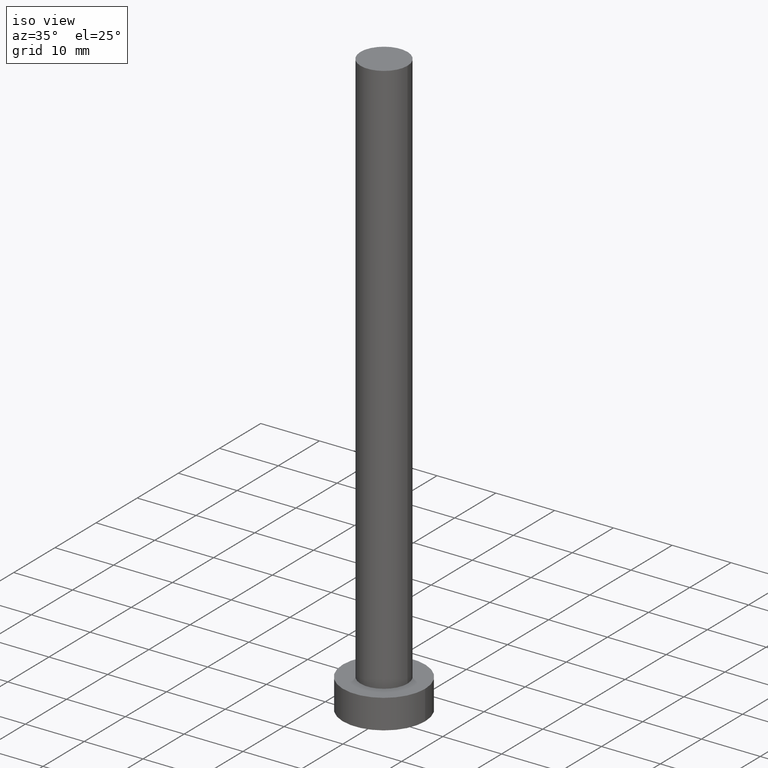
[diagram: clean part render]
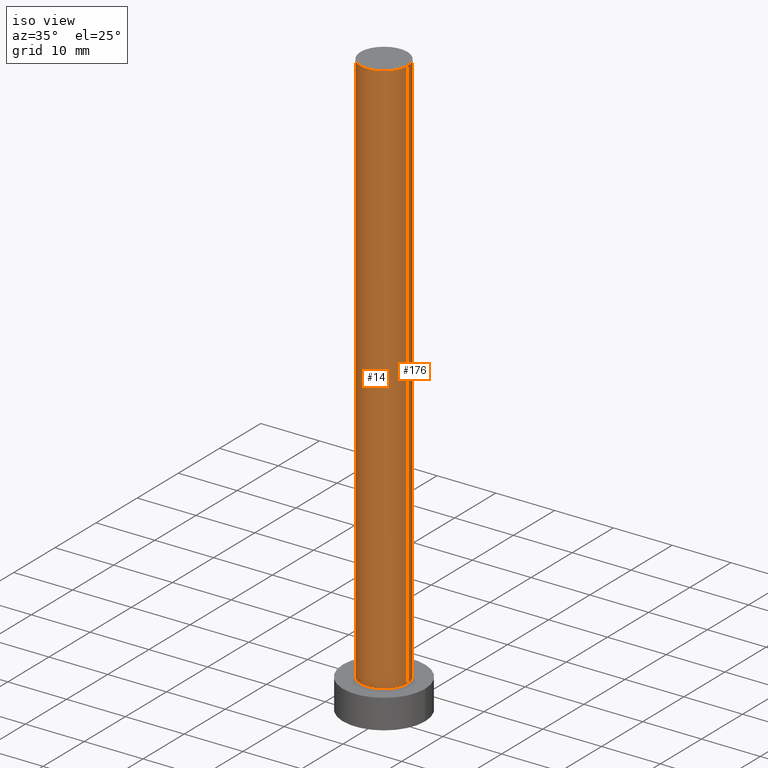
[diagram: same view with one multi-face feature highlighted, each face labeled with its STEP entity id]
A machine part, iso view. The highlighted faces form ONE feature: a constant-radius fillet chain: 2 tangent blend faces with common blend radius 4 mm. The faces share edges in the B-rep.
Their STEP definitions:
[1] entity #176 (Cylinder):
#1 = EDGE_LOOP ( 'NONE', ( #211, #94, #47, #19 ) ) ;
#8 = FACE_OUTER_BOUND ( 'NONE', #1, .T. ) ;
#13 = CYLINDRICAL_SURFACE ( 'NONE', #208, 4.000000000000000000 ) ;
#17 = DIRECTION ( 'NONE',  ( 0.000000000000000000, 0.000000000000000000, 1.000000000000000000 ) ) ;
#19 = ORIENTED_EDGE ( 'NONE', *, *, #234, .F. ) ;
#23 = VECTOR ( 'NONE', #194, 1000.000000000000000 ) ;
#27 = DIRECTION ( 'NONE',  ( -1.000000000000000000, 0.000000000000000000, 0.000000000000000000 ) ) ;
#35 = CIRCLE ( 'NONE', #182, 4.000000000000000000 ) ;
#36 = DIRECTION ( 'NONE',  ( 1.000000000000000000, 0.000000000000000000, 0.000000000000000000 ) ) ;
#44 = CARTESIAN_POINT ( 'NONE',  ( 0.000000000000000000, 0.000000000000000000, 100.0000000000000000 ) ) ;
#47 = ORIENTED_EDGE ( 'NONE', *, *, #85, .T. ) ;
#65 = CARTESIAN_POINT ( 'NONE',  ( 4.000000000000000000, 4.898587196589412829E-16, 100.0000000000000000 ) ) ;
#68 = CARTESIAN_POINT ( 'NONE',  ( 4.000000000000000000, 4.898587196589412829E-16, 100.0000000000000000 ) ) ;
#70 = CARTESIAN_POINT ( 'NONE',  ( 4.000000000000000000, 4.898587196589412829E-16, 5.000000000000000000 ) ) ;
#85 = EDGE_CURVE ( 'NONE', #204, #198, #89, .T. ) ;
#88 = AXIS2_PLACEMENT_3D ( 'NONE', #141, #218, #180 ) ;
#89 = CIRCLE ( 'NONE', #88, 4.000000000000000000 ) ;
#94 = ORIENTED_EDGE ( 'NONE', *, *, #117, .T. ) ;
#95 = VECTOR ( 'NONE', #248, 1000.000000000000000 ) ;
#112 = VERTEX_POINT ( 'NONE', #68 ) ;
#117 = EDGE_CURVE ( 'NONE', #112, #204, #144, .T. ) ;
#121 = CARTESIAN_POINT ( 'NONE',  ( -4.000000000000000000, 0.000000000000000000, 100.0000000000000000 ) ) ;
#141 = CARTESIAN_POINT ( 'NONE',  ( 0.000000000000000000, 0.000000000000000000, 5.000000000000000000 ) ) ;
#144 = LINE ( 'NONE', #65, #95 ) ;
#169 = CARTESIAN_POINT ( 'NONE',  ( 0.000000000000000000, 0.000000000000000000, 100.0000000000000000 ) ) ;
#170 = VERTEX_POINT ( 'NONE', #121 ) ;
#176 = ADVANCED_FACE ( 'NONE', ( #8 ), #13, .T. ) ;
#180 = DIRECTION ( 'NONE',  ( 1.000000000000000000, 0.000000000000000000, 0.000000000000000000 ) ) ;
#182 = AXIS2_PLACEMENT_3D ( 'NONE', #169, #17, #36 ) ;
#194 = DIRECTION ( 'NONE',  ( -0.000000000000000000, -0.000000000000000000, -1.000000000000000000 ) ) ;
#198 = VERTEX_POINT ( 'NONE', #249 ) ;
#204 = VERTEX_POINT ( 'NONE', #70 ) ;
#205 = DIRECTION ( 'NONE',  ( -0.000000000000000000, -0.000000000000000000, -1.000000000000000000 ) ) ;
#208 = AXIS2_PLACEMENT_3D ( 'NONE', #44, #205, #27 ) ;
#211 = ORIENTED_EDGE ( 'NONE', *, *, #246, .F. ) ;
#216 = LINE ( 'NONE', #233, #23 ) ;
#218 = DIRECTION ( 'NONE',  ( 0.000000000000000000, 0.000000000000000000, 1.000000000000000000 ) ) ;
#233 = CARTESIAN_POINT ( 'NONE',  ( -4.000000000000000000, 0.000000000000000000, 100.0000000000000000 ) ) ;
#234 = EDGE_CURVE ( 'NONE', #170, #198, #216, .T. ) ;
#246 = EDGE_CURVE ( 'NONE', #112, #170, #35, .T. ) ;
#248 = DIRECTION ( 'NONE',  ( -0.000000000000000000, -0.000000000000000000, -1.000000000000000000 ) ) ;
#249 = CARTESIAN_POINT ( 'NONE',  ( -4.000000000000000000, 0.000000000000000000, 5.000000000000000000 ) ) ;
[2] entity #14 (Cylinder):
#14 = ADVANCED_FACE ( 'NONE', ( #86 ), #214, .T. ) ;
#23 = VECTOR ( 'NONE', #194, 1000.000000000000000 ) ;
#56 = DIRECTION ( 'NONE',  ( -0.000000000000000000, -0.000000000000000000, -1.000000000000000000 ) ) ;
#61 = CARTESIAN_POINT ( 'NONE',  ( 0.000000000000000000, 0.000000000000000000, 5.000000000000000000 ) ) ;
#65 = CARTESIAN_POINT ( 'NONE',  ( 4.000000000000000000, 4.898587196589412829E-16, 100.0000000000000000 ) ) ;
#68 = CARTESIAN_POINT ( 'NONE',  ( 4.000000000000000000, 4.898587196589412829E-16, 100.0000000000000000 ) ) ;
#69 = EDGE_CURVE ( 'NONE', #198, #204, #102, .T. ) ;
#70 = CARTESIAN_POINT ( 'NONE',  ( 4.000000000000000000, 4.898587196589412829E-16, 5.000000000000000000 ) ) ;
#73 = CARTESIAN_POINT ( 'NONE',  ( 0.000000000000000000, 0.000000000000000000, 100.0000000000000000 ) ) ;
#81 = DIRECTION ( 'NONE',  ( 0.000000000000000000, 0.000000000000000000, 1.000000000000000000 ) ) ;
#86 = FACE_OUTER_BOUND ( 'NONE', #91, .T. ) ;
#91 = EDGE_LOOP ( 'NONE', ( #253, #229, #168, #126 ) ) ;
#95 = VECTOR ( 'NONE', #248, 1000.000000000000000 ) ;
#97 = DIRECTION ( 'NONE',  ( 0.000000000000000000, 0.000000000000000000, 1.000000000000000000 ) ) ;
#100 = EDGE_CURVE ( 'NONE', #170, #112, #124, .T. ) ;
#102 = CIRCLE ( 'NONE', #203, 4.000000000000000000 ) ;
#112 = VERTEX_POINT ( 'NONE', #68 ) ;
#117 = EDGE_CURVE ( 'NONE', #112, #204, #144, .T. ) ;
#121 = CARTESIAN_POINT ( 'NONE',  ( -4.000000000000000000, 0.000000000000000000, 100.0000000000000000 ) ) ;
#124 = CIRCLE ( 'NONE', #135, 4.000000000000000000 ) ;
#126 = ORIENTED_EDGE ( 'NONE', *, *, #69, .T. ) ;
#135 = AXIS2_PLACEMENT_3D ( 'NONE', #184, #81, #247 ) ;
#144 = LINE ( 'NONE', #65, #95 ) ;
#162 = DIRECTION ( 'NONE',  ( 1.000000000000000000, 0.000000000000000000, 0.000000000000000000 ) ) ;
#168 = ORIENTED_EDGE ( 'NONE', *, *, #234, .T. ) ;
#170 = VERTEX_POINT ( 'NONE', #121 ) ;
#184 = CARTESIAN_POINT ( 'NONE',  ( 0.000000000000000000, 0.000000000000000000, 100.0000000000000000 ) ) ;
#194 = DIRECTION ( 'NONE',  ( -0.000000000000000000, -0.000000000000000000, -1.000000000000000000 ) ) ;
#198 = VERTEX_POINT ( 'NONE', #249 ) ;
#203 = AXIS2_PLACEMENT_3D ( 'NONE', #61, #97, #162 ) ;
#204 = VERTEX_POINT ( 'NONE', #70 ) ;
#214 = CYLINDRICAL_SURFACE ( 'NONE', #224, 4.000000000000000000 ) ;
#216 = LINE ( 'NONE', #233, #23 ) ;
#224 = AXIS2_PLACEMENT_3D ( 'NONE', #73, #56, #251 ) ;
#229 = ORIENTED_EDGE ( 'NONE', *, *, #100, .F. ) ;
#233 = CARTESIAN_POINT ( 'NONE',  ( -4.000000000000000000, 0.000000000000000000, 100.0000000000000000 ) ) ;
#234 = EDGE_CURVE ( 'NONE', #170, #198, #216, .T. ) ;
#247 = DIRECTION ( 'NONE',  ( 1.000000000000000000, 0.000000000000000000, 0.000000000000000000 ) ) ;
#248 = DIRECTION ( 'NONE',  ( -0.000000000000000000, -0.000000000000000000, -1.000000000000000000 ) ) ;
#249 = CARTESIAN_POINT ( 'NONE',  ( -4.000000000000000000, 0.000000000000000000, 5.000000000000000000 ) ) ;
#251 = DIRECTION ( 'NONE',  ( -1.000000000000000000, 0.000000000000000000, 0.000000000000000000 ) ) ;
#253 = ORIENTED_EDGE ( 'NONE', *, *, #117, .F. ) ;